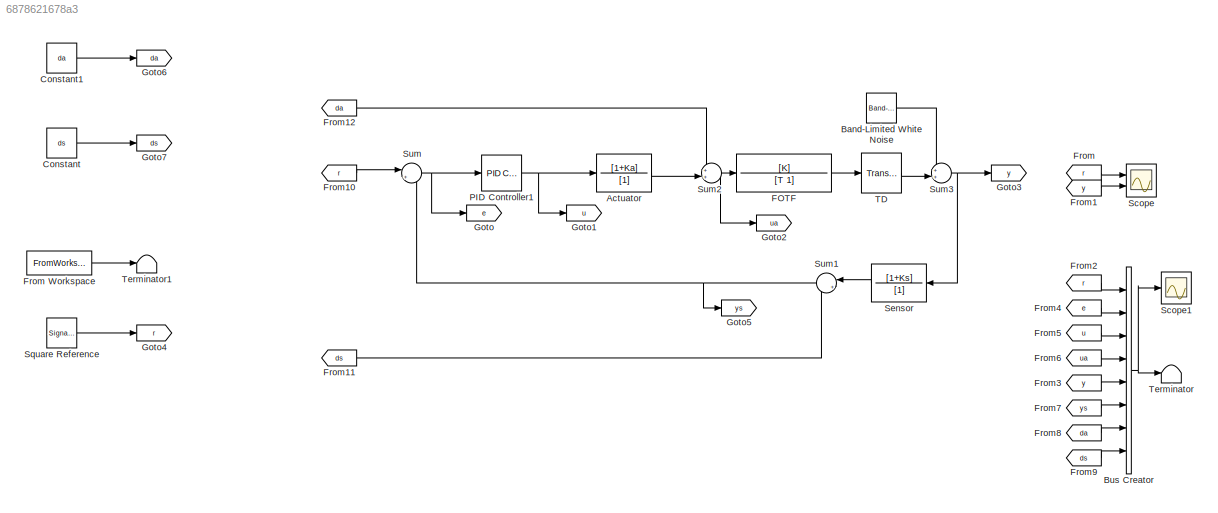
MODEL slx_6878621678a3
KIND model
CONFIG AbsTol = auto
CONFIG EnableMultiTasking = off
CONFIG FixedStep = TsSystem
CONFIG MaxStep = 0.01
CONFIG MinStep = auto
CONFIG RelTol = 1e-3
CONFIG SampleTimeConstraint = Unconstrained
CONFIG SolverName = FixedStepAuto
CONFIG StartTime = 0.0
CONFIG StopTime = 20
BLOCK [TransferFcn] Actuator
  Denominator = [1]
  Numerator = [1+Ka]
BLOCK [Reference] Band-Limited White Noise  REF=simulink/Sources/Band-Limited
White Noise
  Ports = [0, 1]
  SourceBlock = simulink/Sources/Band-Limited\nWhite Noise
  SourceProductBaseCode = SL
  SourceType = Band-Limited White Noise.
BLOCK [BusCreator] Bus Creator
  DisplayOption = bar
  InheritFromInputs = on
  Inputs = 8
  Ports = [8, 1]
BLOCK [Constant] Constant
  Value = ds
BLOCK [Constant] Constant1
  Value = da
BLOCK [TransferFcn] FOTF
  Denominator = [T 1]
  Numerator = [K]
BLOCK [From] From
  GotoTag = r
BLOCK [FromWorkspace] From Workspace
  OutputAfterFinalValue = Holding final value
  SampleTime = TsSystem
  VariableName = RefSignal
BLOCK [From] From1
  GotoTag = y
BLOCK [From] From10
  GotoTag = r
BLOCK [From] From11
  GotoTag = ds
BLOCK [From] From12
  GotoTag = da
BLOCK [From] From2
  GotoTag = r
BLOCK [From] From3
  GotoTag = y
BLOCK [From] From4
  GotoTag = e
BLOCK [From] From5
  GotoTag = u
BLOCK [From] From6
  GotoTag = ua
BLOCK [From] From7
  GotoTag = ys
BLOCK [From] From8
  GotoTag = da
BLOCK [From] From9
  GotoTag = ds
BLOCK [Goto] Goto
  GotoTag = e
BLOCK [Goto] Goto1
  GotoTag = u
BLOCK [Goto] Goto2
  GotoTag = ua
BLOCK [Goto] Goto3
  GotoTag = y
BLOCK [Goto] Goto4
  GotoTag = r
BLOCK [Goto] Goto5
  GotoTag = ys
BLOCK [Goto] Goto6
  GotoTag = da
BLOCK [Goto] Goto7
  GotoTag = ds
BLOCK [Reference] PID Controller1  REF=pid_lib/PID Controller
  Ports = [1, 1]
  SourceBlock = pid_lib/PID Controller
  SourceProductBaseCode = SL
  SourceType = PID 1dof
BLOCK [Scope] Scope
  Floating = off
  NumInputPorts = 2
  Ports = [2]
  ScopeSpecificationString = Simulink.scopes.TimeScopeBlockCfg('CurrentConfiguration', extmgr.ConfigurationSet(extmgr.Configuration('Core','General UI',true),extmgr.Configuration('Core','Source UI',true),extmgr.Configuration('Sources','WiredSimulink',true),extmgr.Configuration('Visuals','Time Domain',true,'SerializedDisplays',{struct('MinYLimReal','-1.81051','MaxYLimReal','1.8297','YLabelReal','','MinYLimMag','0.00000','MaxYL...<+1366ch>
BLOCK [Scope] Scope1
  Floating = off
  NumInputPorts = 1
  Ports = [1]
  ScopeSpecificationString = Simulink.scopes.TimeScopeBlockCfg('CurrentConfiguration', extmgr.ConfigurationSet(extmgr.Configuration('Core','General UI',true),extmgr.Configuration('Core','Source UI',true),extmgr.Configuration('Sources','WiredSimulink',true,'DataLoggingVariableName','ScopeData1'),extmgr.Configuration('Visuals','Time Domain',true,'SerializedDisplays',{struct('MinYLimReal','-2.56361','MaxYLimReal','2.56966','YLab...<+1503ch>
BLOCK [TransferFcn] Sensor
  Denominator = [1]
  NameLocation = top
  Numerator = [1+Ks]
BLOCK [SignalGenerator] Square Reference
  Frequency = 0.1
  Ports = [0, 1]
  WaveForm = square
BLOCK [Sum] Sum
  Inputs = |+-
  Ports = [2, 1]
BLOCK [Sum] Sum1
  Inputs = |++
  NameLocation = top
  Ports = [2, 1]
BLOCK [Sum] Sum2
  Inputs = ++|
  Ports = [2, 1]
BLOCK [Sum] Sum3
  Inputs = ++|
  Ports = [2, 1]
BLOCK [TransportDelay] TD
  DelayTime = L
  Ports = [1, 1]
BLOCK [Terminator] Terminator
BLOCK [Terminator] Terminator1
LINE Actuator:1 -> Sum2:2
LINE Band-Limited White Noise:1 -> Sum3:1
NET Bus Creator:1 -> Scope1:1, Terminator:1
LINE Constant1:1 -> Goto6:1
LINE Constant:1 -> Goto7:1
LINE FOTF:1 -> TD:1
LINE From Workspace:1 -> Terminator1:1
LINE From10:1 -> Sum:1
LINE From11:1 -> Sum1:2
LINE From12:1 -> Sum2:1
LINE From1:1 -> Scope:2
LINE From2:1 -> Bus Creator:1
LINE From3:1 -> Bus Creator:5
LINE From4:1 -> Bus Creator:2
LINE From5:1 -> Bus Creator:3
LINE From6:1 -> Bus Creator:4
LINE From7:1 -> Bus Creator:6
LINE From8:1 -> Bus Creator:7
LINE From9:1 -> Bus Creator:8
LINE From:1 -> Scope:1
NET PID Controller1:1 -> Actuator:1, Goto1:1
LINE Sensor:1 -> Sum1:1
LINE Square Reference:1 -> Goto4:1
NET Sum1:1 -> Goto5:1, Sum:2
NET Sum2:1 -> FOTF:1, Goto2:1
NET Sum3:1 -> Goto3:1, Sensor:1
NET Sum:1 -> Goto:1, PID Controller1:1
LINE TD:1 -> Sum3:2
note: NET lines group one-source signal fan-out (src -> all destinations, sorted); 1:1 wires keep LINE
